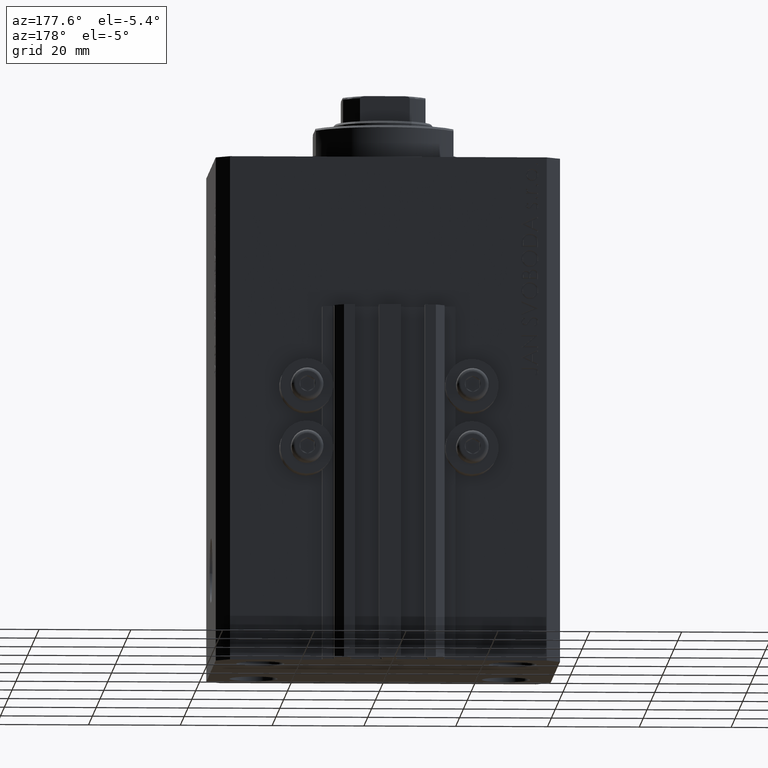
[diagram: clean part render]
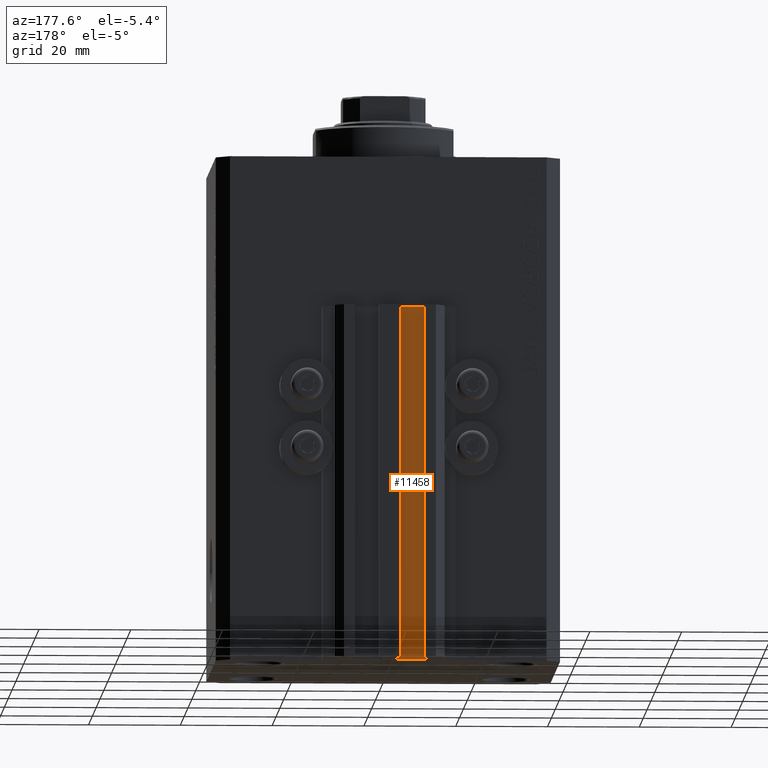
[diagram: same view with one face highlighted and labeled with its STEP entity id]
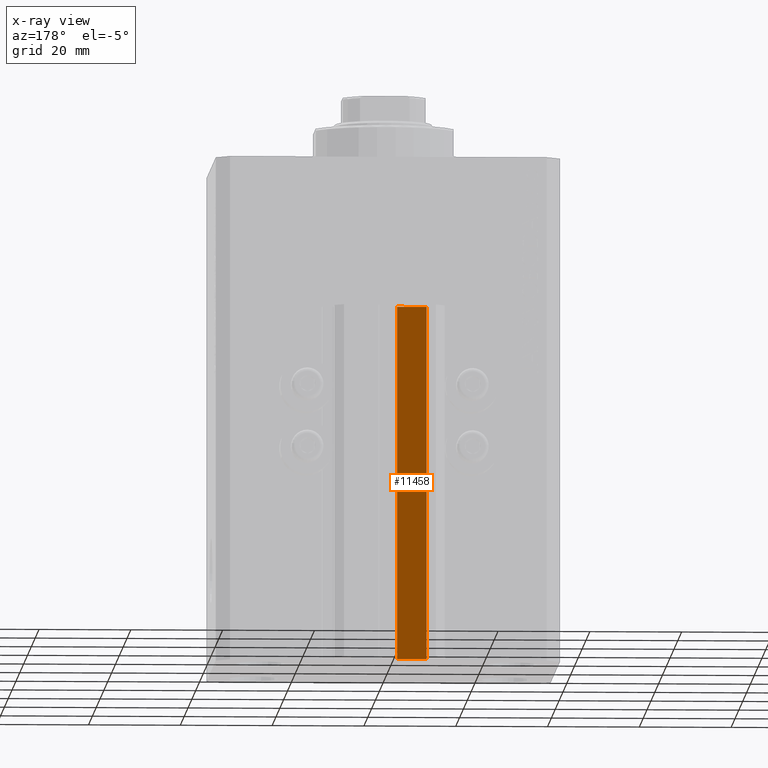
[diagram: x-ray of the same camera — body ghosted, the highlighted face saturated]
A machine part, auxiliary view. The second image highlights one B-rep face of the part: STEP entity #11458.
The next image is the same camera in x-ray: the body ghosted, the highlighted face saturated — about 0% of this face is hidden behind the body in this view.
In plain terms, the highlighted planar face has unit normal (0, 1, 0).
Its self-contained STEP definition (entity closure, byte-faithful):
#400 = VECTOR ( 'NONE', #25531, 1000.000000000000000 ) ;
#905 = ORIENTED_EDGE ( 'NONE', *, *, #45494, .F. ) ;
#2141 = CARTESIAN_POINT ( 'NONE',  ( -1.800000000000000933, 29.50000000000000355, -110.0000000000000000 ) ) ;
#2331 = DIRECTION ( 'NONE',  ( -1.000000000000000000, 0.000000000000000000, 0.000000000000000000 ) ) ;
#3983 = VECTOR ( 'NONE', #26541, 1000.000000000000000 ) ;
#3994 = VECTOR ( 'NONE', #2331, 1000.000000000000000 ) ;
#7106 = VERTEX_POINT ( 'NONE', #22387 ) ;
#7267 = VECTOR ( 'NONE', #13463, 1000.000000000000000 ) ;
#7358 = CARTESIAN_POINT ( 'NONE',  ( -1.800000000000000933, 29.50000000000000355, -110.0000000000000000 ) ) ;
#9913 = CARTESIAN_POINT ( 'NONE',  ( -8.199999999999997513, 29.50000000000000355, -33.00000000000000000 ) ) ;
#10394 = ORIENTED_EDGE ( 'NONE', *, *, #34968, .F. ) ;
#11458 = ADVANCED_FACE ( 'NONE', ( #14494 ), #22383, .T. ) ;
#13463 = DIRECTION ( 'NONE',  ( 0.000000000000000000, 0.000000000000000000, 1.000000000000000000 ) ) ;
#13746 = EDGE_CURVE ( 'NONE', #7106, #41408, #32278, .T. ) ;
#14494 = FACE_OUTER_BOUND ( 'NONE', #33953, .T. ) ;
#15993 = ORIENTED_EDGE ( 'NONE', *, *, #45178, .T. ) ;
#17509 = CARTESIAN_POINT ( 'NONE',  ( -8.199999999999997513, 29.50000000000000355, -110.0000000000000000 ) ) ;
#18559 = DIRECTION ( 'NONE',  ( 0.000000000000000000, 1.000000000000000000, -0.000000000000000000 ) ) ;
#20458 = CARTESIAN_POINT ( 'NONE',  ( -1.800000000000000933, 29.50000000000000355, -33.00000000000000000 ) ) ;
#22383 = PLANE ( 'NONE',  #33272 ) ;
#22387 = CARTESIAN_POINT ( 'NONE',  ( -1.800000000000000933, 29.50000000000000355, -110.0000000000000000 ) ) ;
#23218 = CARTESIAN_POINT ( 'NONE',  ( -8.199999999999997513, 29.50000000000000355, -110.0000000000000000 ) ) ;
#24449 = LINE ( 'NONE', #17509, #7267 ) ;
#25531 = DIRECTION ( 'NONE',  ( 0.000000000000000000, 0.000000000000000000, 1.000000000000000000 ) ) ;
#26541 = DIRECTION ( 'NONE',  ( -1.000000000000000000, 0.000000000000000000, 0.000000000000000000 ) ) ;
#30774 = LINE ( 'NONE', #20458, #3994 ) ;
#32278 = LINE ( 'NONE', #36094, #3983 ) ;
#33272 = AXIS2_PLACEMENT_3D ( 'NONE', #7358, #18559, #36968 ) ;
#33935 = VERTEX_POINT ( 'NONE', #9913 ) ;
#33953 = EDGE_LOOP ( 'NONE', ( #10394, #905, #41520, #15993 ) ) ;
#34855 = LINE ( 'NONE', #2141, #400 ) ;
#34968 = EDGE_CURVE ( 'NONE', #45877, #33935, #30774, .T. ) ;
#35752 = CARTESIAN_POINT ( 'NONE',  ( -1.800000000000000933, 29.50000000000000355, -33.00000000000000000 ) ) ;
#36094 = CARTESIAN_POINT ( 'NONE',  ( -1.800000000000000933, 29.50000000000000355, -110.0000000000000000 ) ) ;
#36968 = DIRECTION ( 'NONE',  ( 0.000000000000000000, 0.000000000000000000, 1.000000000000000000 ) ) ;
#41408 = VERTEX_POINT ( 'NONE', #23218 ) ;
#41520 = ORIENTED_EDGE ( 'NONE', *, *, #13746, .T. ) ;
#45178 = EDGE_CURVE ( 'NONE', #41408, #33935, #24449, .T. ) ;
#45494 = EDGE_CURVE ( 'NONE', #7106, #45877, #34855, .T. ) ;
#45877 = VERTEX_POINT ( 'NONE', #35752 ) ;